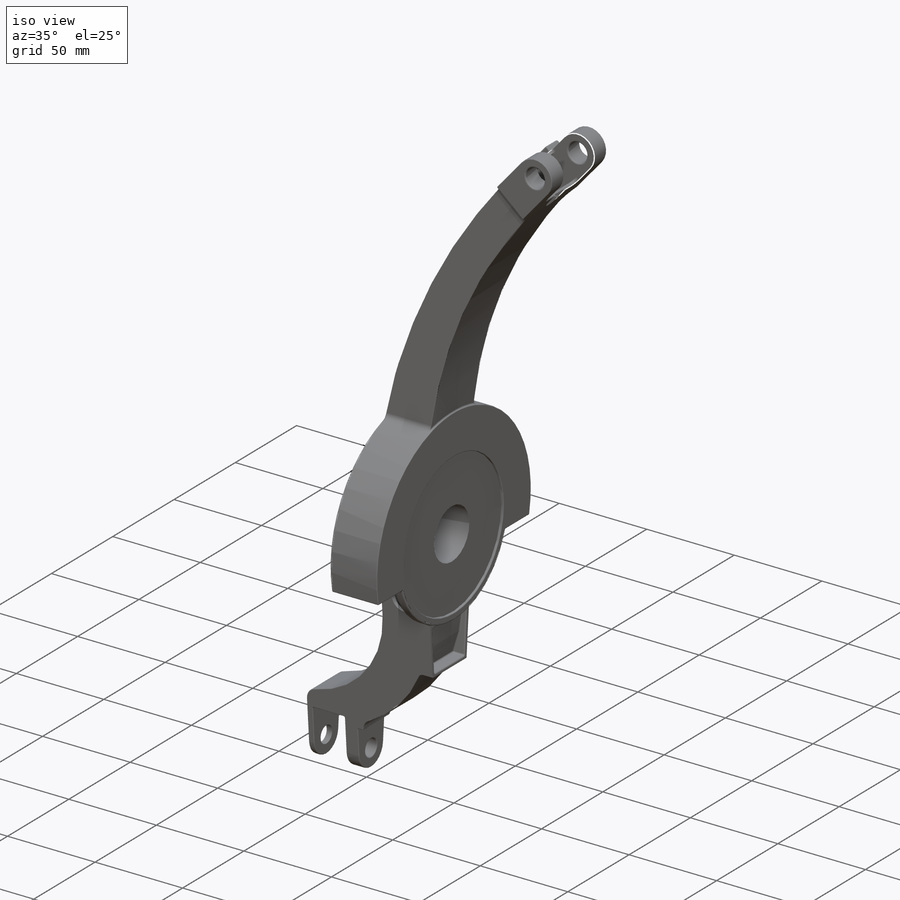
[diagram: iso view]
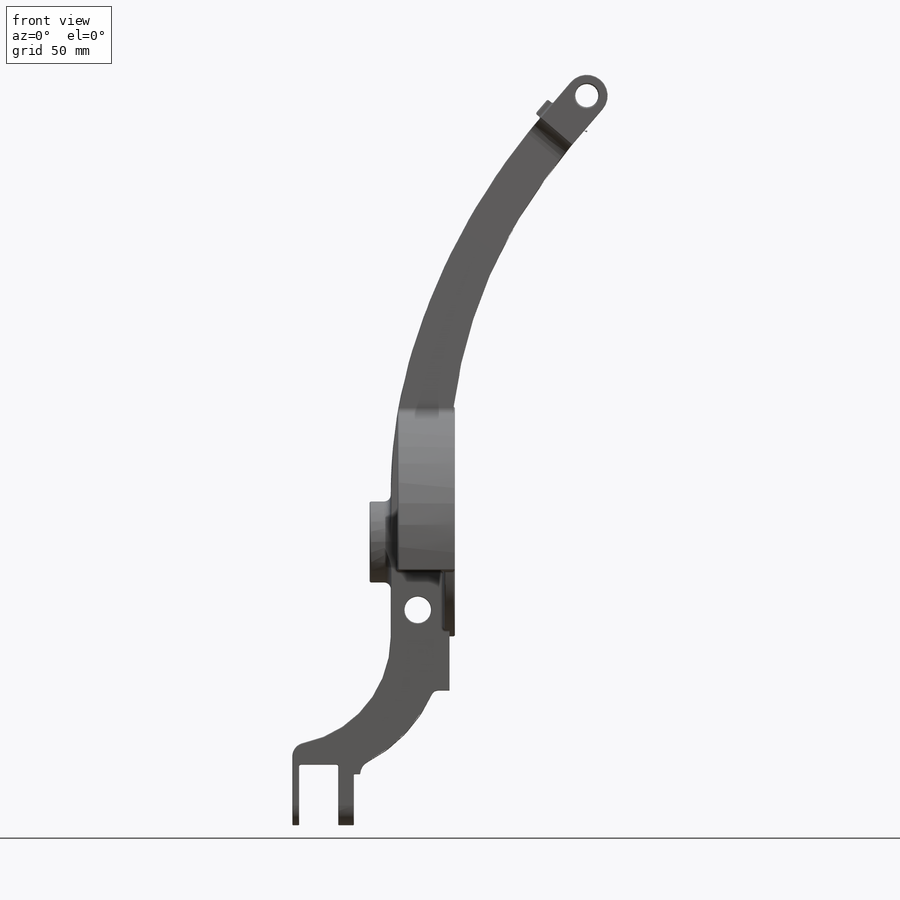
[diagram: front view]
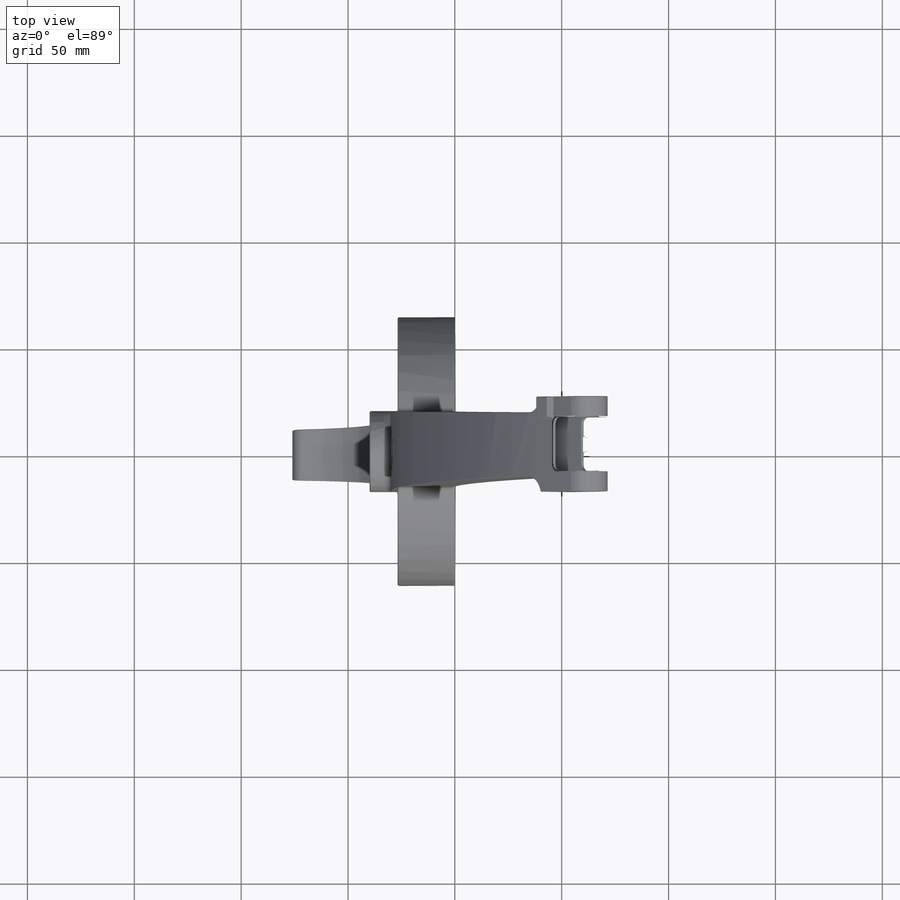
[diagram: top view]
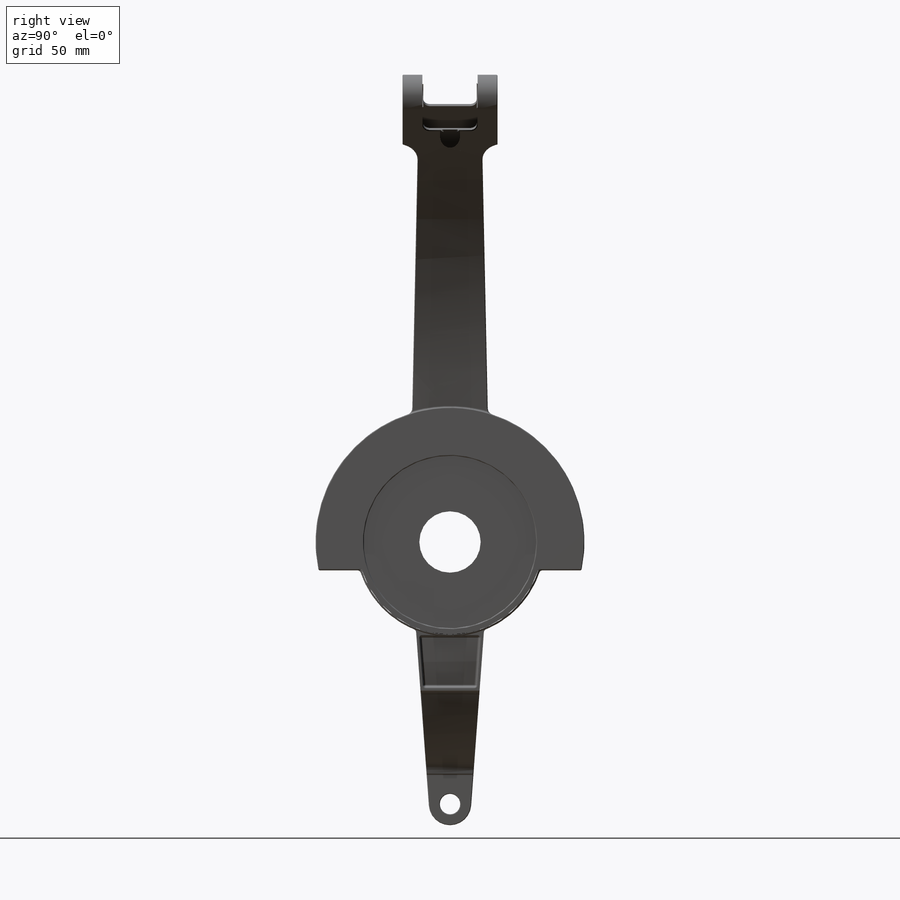
[diagram: right view]
SOLIDWORKS PART (.sldprt)
format: sldprt  version: not decoded by parser v0  size: 1,870,336 bytes
history: native  units: mm
features: fillet x33, sketch x28, cut_extrude x15, extrude x10, material x1, shell x1 (+16 scaffold rows collapsed)
feature tree (104):
  scaffold x16  (default folders/planes/origin — collapsed)
  material  "Material <not specified>"
  sketch  "Sketch1"  dims[c1.D1=609.6mm c1.D12=101.6mm c1.D3=304.8mm c2.D3=40.58deg c2.D2=3.175mm c2.D4=24.2824mm c2.D5=19.558mm c2.D6=26.9748mm c2.D7=44.45mm c2.D8=5.08mm c2.D9=~13.27912mm c2.D10=76.2mm c2.D11=91.694mm]
  sketch  "Sketch2"  dims[c1.D1=~41.001468mm c1.D2=~41.001468mm c2.D1=31.75mm]
  extrude  "Extrude1"  Depth=18.95602mm
  fillet  "Fillet1"  Radius=228.6mm
  fillet  "Fillet2"  Radius=228.6mm
  sketch  "Sketch7"  dims[D1=~14.79042mm]
  cut_extrude  "Extrude3"  [1 undecoded]
  sketch  "Sketch8"  dims[D1=11.2522mm]
  sketch  "Sketch10"
  cut_extrude  "Extrude4"  [1 undecoded]
  shell  "Shell1"  Thickness=1.905mm
  sketch  "Sketch5"  dims[D1=13.2842mm]
  extrude  "Extrude5"  [1 undecoded]
  sketch  "Sketch14"
  extrude  "Extrude6"  Depth=2.54mm
  sketch  "Sketch15"
  extrude  "Extrude7"  Depth=5.08mm
  sketch  "Sketch16"  dims[D1=2.1082mm D2=2.1082mm]
  cut_extrude  "Extrude8"  [1 undecoded]
  sketch  "Sketch17"  dims[D1=80.899mm]
  cut_extrude  "Extrude9"  Depth=1.27mm
  sketch  "Sketch21"  dims[D1=28.702mm]
  extrude  "Extrude12"  Depth=39.8907mm
  sketch  "Sketch22"  dims[D1=0.0mm]
  cut_extrude  "Extrude14"  [1 undecoded]
  fillet  "Fillet3"  Radius=6.35mm
  fillet  "Fillet9"  Radius=3.175mm
  sketch  "Sketch24"  dims[D1=28.194mm]
  extrude  "Extrude15"  [1 undecoded]
  sketch  "Sketch25"  dims[D1=9.525mm]
  cut_extrude  "Extrude16"  [1 undecoded]
  sketch  "Sketch26"  dims[D1=3.1623mm D2=18.288mm D3=39.37mm]
  cut_extrude  "Extrude17"  [1 undecoded]
  fillet  "Fillet10"  Radius=6.35mm
  sketch  "Sketch27"  dims[D1=0.0mm]
  cut_extrude  "Extrude18"  Depth=7.3025mm
  sketch  "Sketch28"  dims[D1=1.905mm D2=7.62mm]
  cut_extrude  "Extrude19"  [1 undecoded]
  sketch  "Sketch34"  dims[D1=0.0mm]
  sketch  "Sketch30"  dims[D1=22.225mm D2=22.225mm]
  extrude  "Extrude20"  Depth=31.75mm
  sketch  "Sketch31"  dims[D1=2.54mm]
  cut_extrude  "Extrude21"  [1 undecoded]
  sketch  "Sketch32"  dims[D1=10.795mm]
  cut_extrude  "Extrude22"  [1 undecoded]
  sketch  "Sketch33"  dims[D1=12.5222mm D2=12.5222mm D3=8.7376mm]
  cut_extrude  "Extrude23"  [1 undecoded]
  sketch  "Sketch35"
  cut_extrude  "Extrude29"  [1 undecoded]
  sketch  "Sketch36"
  extrude  "Extrude30"  Depth=2.9972mm
  fillet  "Fillet35"  Radius=3.175mm
  fillet  "Fillet11"  Radius=3.175mm
  fillet  "Fillet12"  Radius=9.525mm
  sketch  "Sketch37"  dims[D1=25.4mm D2=1.8415mm]
  extrude  "Extrude31"  [1 undecoded]
  fillet  "Fillet15"  Radius=0.79375mm
  fillet  "Fillet16"  Radius=3.175mm
  fillet  "Fillet17"  Radius=3.175mm
  fillet  "Fillet18"  Radius=0.79375mm
  fillet  "Fillet19"  Radius=0.79375mm
  fillet  "Fillet20"  Radius=0.79375mm
  fillet  "Fillet21"  Radius=1.5875mm
  fillet  "Fillet22"  Radius=0.79375mm
  fillet  "Fillet24"  Radius=0.396875mm
  fillet  "Fillet30"  Radius=0.79375mm
  fillet  "Fillet31"  Radius=0.79375mm
  fillet  "Fillet32"  Radius=0.396875mm
  fillet  "Fillet33"  Radius=0.79375mm
  fillet  "Fillet34"  Radius=0.396875mm
  fillet  "Fillet36"  Radius=0.79375mm
  fillet  "Fillet37"  Radius=0.396875mm
  fillet  "Fillet38"  Radius=0.396875mm
  fillet  "Fillet39"  Radius=0.396875mm
  sketch  "Sketch38"  dims[D1=12.446mm D2=14.9098mm D3=6.4008mm]
  cut_extrude  "Extrude32"  [1 undecoded]
  fillet  "Fillet40"  Radius=0.396875mm
  sketch  "Sketch39"  dims[D2=19.05mm D3=~6.099799mm D1=6.35mm]
  cut_extrude  "Extrude33"  [1 undecoded]
  fillet  "Fillet41"  Radius=0.396875mm
  sketch  "Sketch41"  dims[c1.D1=10.0deg c2.D1=6.35mm c2.D2=6.35mm]
  extrude  "Extrude34"  Depth=3.175mm
  fillet  "Fillet42"  Radius=3.175mm
  fillet  "Fillet43"  Radius=0.79375mm
  fillet  "Fillet44"  Radius=0.396875mm
  fillet  "Fillet29"  Radius=0.396875mm
  fillet  "Fillet45"  Radius=1.5875mm
decode coverage: 66 of 87 modeling features carry decoded parameters
note: ~ marks probable driven/reference dimensions
note: 16 parameter values undecoded
summary: no parameter record found for 16 features
note: suppression state not decoded; provenance and decode notes live in map.json
